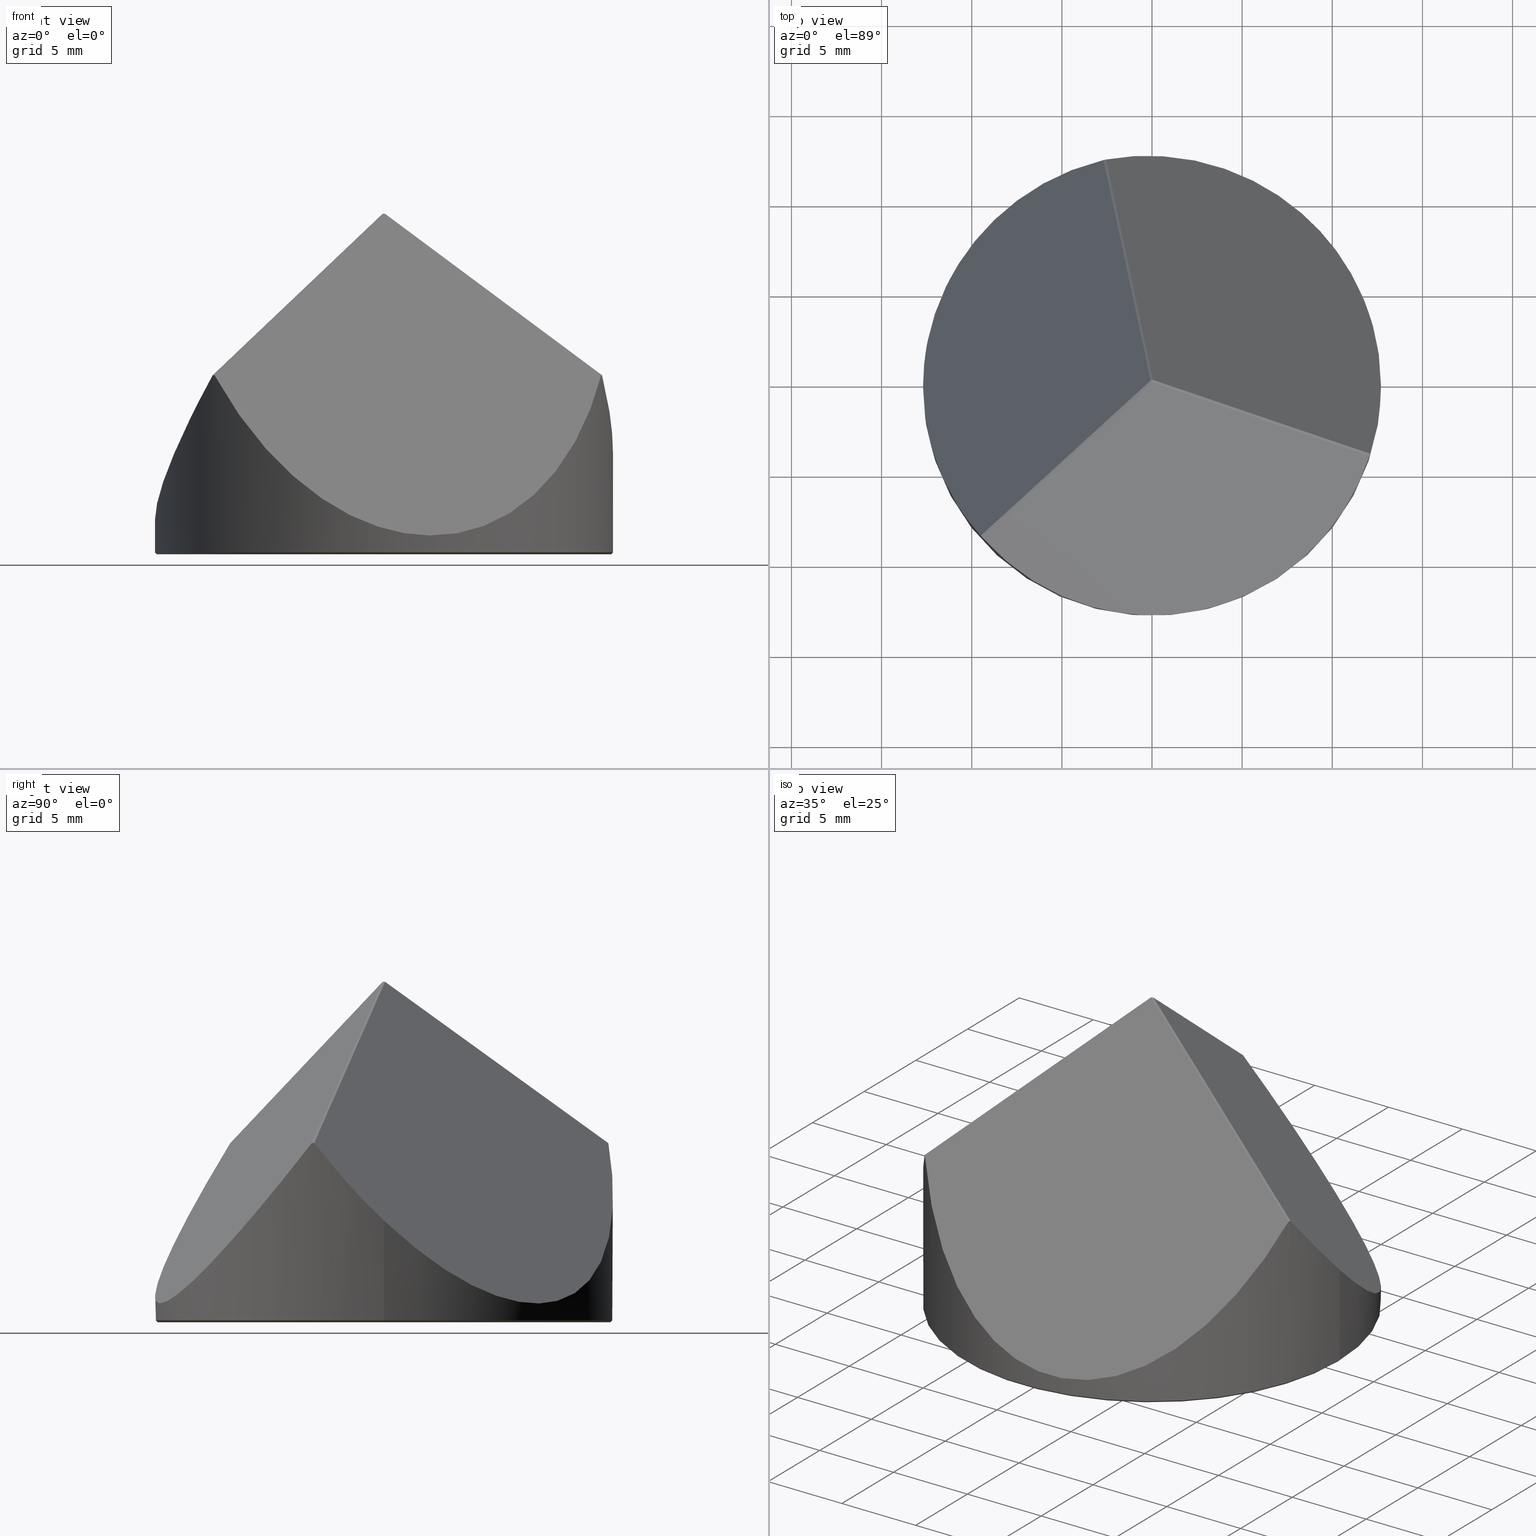
[diagram: canonical four-view strip — front | top / right | iso, engineering-drawing reading convention]
A machine part, canonical four-view strip (front | top / right | iso — engineering-drawing reading convention). The complete STEP part file that produces these views, byte-faithful:
ISO-10303-21;
HEADER;
FILE_DESCRIPTION (( 'STEP AP214' ),
    '1' );
FILE_NAME ('GP26-025-3.STEP',
    '2024-08-15T09:51:43',
    ( 'Windows User' ),
    ( 'P R C' ),
    'SwSTEP 2.0',
    'SolidWorks 2022',
    '' );
FILE_SCHEMA (( 'AUTOMOTIVE_DESIGN' ));
ENDSEC;

DATA;
#1 = VECTOR ( 'NONE', #195, 1000.000000000000114 ) ;
#2 = CYLINDRICAL_SURFACE ( 'NONE', #251, 12.69999999999999929 ) ;
#3 = EDGE_CURVE ( 'NONE', #173, #337, #166, .T. ) ;
#4 = DIRECTION ( 'NONE',  ( -0.000000000000000000, -0.000000000000000000, -1.000000000000000000 ) ) ;
#5 = CARTESIAN_POINT ( 'NONE',  ( 12.09329232385365493, -3.878437929092366510, 9.913536654948586602 ) ) ;
#6 =( BOUNDED_CURVE ( )  B_SPLINE_CURVE ( 3, ( #129, #241, #212, #153 ),
 .UNSPECIFIED., .F., .F. ) 
 B_SPLINE_CURVE_WITH_KNOTS ( ( 4, 4 ),
 ( 6.277617508481705855, 6.288753105877451510 ),
 .UNSPECIFIED. ) 
 CURVE ( )  GEOMETRIC_REPRESENTATION_ITEM ( )  RATIONAL_B_SPLINE_CURVE ( ( 1.000000000000000000, 0.9999896665659149253, 0.9999896665659149253, 1.000000000000000000 ) ) 
 REPRESENTATION_ITEM ( '' )  );
#7 = DIRECTION ( 'NONE',  ( 0.6077332452617936198, 0.5452769656516175401, 0.5773502691896256200 ) ) ;
#8 = EDGE_CURVE ( 'NONE', #65, #29, #229, .T. ) ;
#9 = CLOSED_SHELL ( 'NONE', ( #31, #141, #199, #110, #98, #159, #116, #154, #174, #18, #35, #213 ) ) ;
#10 = AXIS2_PLACEMENT_3D ( 'NONE', #234, #66, #183 ) ;
#11 = ORIENTED_EDGE ( 'NONE', *, *, #339, .F. ) ;
#12 =( NAMED_UNIT ( * ) SI_UNIT ( $, .STERADIAN. ) SOLID_ANGLE_UNIT ( ) );
#13 = AXIS2_PLACEMENT_3D ( 'NONE', #42, #277, #17 ) ;
#14 = CARTESIAN_POINT ( 'NONE',  ( 0.000000000000000000, 0.000000000000000000, 0.08000000000000020983 ) ) ;
#15 = ORIENTED_EDGE ( 'NONE', *, *, #91, .T. ) ;
#16 = UNCERTAINTY_MEASURE_WITH_UNIT (LENGTH_MEASURE( 1.000000000000000082E-05 ), #157, 'distance_accuracy_value', 'NONE');
#17 = DIRECTION ( 'NONE',  ( 1.000000000000000000, 0.000000000000000000, 0.000000000000000000 ) ) ;
#18 = ADVANCED_FACE ( 'NONE', ( #296 ), #158, .F. ) ;
#19 = CARTESIAN_POINT ( 'NONE',  ( 0.000000000000000000, 0.000000000000000000, 0.000000000000000000 ) ) ;
#20 = LINE ( 'NONE', #201, #106 ) ;
#21 = ORIENTED_EDGE ( 'NONE', *, *, #185, .T. ) ;
#22 = CARTESIAN_POINT ( 'NONE',  ( 0.000000000000000000, 0.000000000000000000, -0.02000000000000000042 ) ) ;
#23 = VERTEX_POINT ( 'NONE', #193 ) ;
#24 = EDGE_CURVE ( 'NONE', #88, #65, #191, .T. ) ;
#25 =( NAMED_UNIT ( * ) PLANE_ANGLE_UNIT ( ) SI_UNIT ( $, .RADIAN. ) );
#26 = EDGE_LOOP ( 'NONE', ( #47, #118, #155, #123 ) ) ;
#27 = PLANE ( 'NONE',  #314 ) ;
#28 = DIRECTION ( 'NONE',  ( -0.6678251671697821301, 0.7443181753085521546, 2.058629733040921112E-28 ) ) ;
#29 = VERTEX_POINT ( 'NONE', #330 ) ;
#30 = CARTESIAN_POINT ( 'NONE',  ( -2.687820388331773280, 12.41231733239478707, 9.913536654948602589 ) ) ;
#31 = ADVANCED_FACE ( 'NONE', ( #298 ), #37, .T. ) ;
#32 = CARTESIAN_POINT ( 'NONE',  ( -12.69999999999999929, 0.000000000000000000, 1.908562075568193128 ) ) ;
#33 =( BOUNDED_CURVE ( )  B_SPLINE_CURVE ( 3, ( #253, #279, #310, #79 ),
 .UNSPECIFIED., .F., .F. ) 
 B_SPLINE_CURVE_WITH_KNOTS ( ( 4, 4 ),
 ( 5.241555554680855877, 7.324815059678307705 ),
 .UNSPECIFIED. ) 
 CURVE ( )  GEOMETRIC_REPRESENTATION_ITEM ( )  RATIONAL_B_SPLINE_CURVE ( ( 1.000000000000000000, 0.6698760534178429538, 0.6698760534178429538, 1.000000000000000000 ) ) 
 REPRESENTATION_ITEM ( '' )  );
#34 = ORIENTED_EDGE ( 'NONE', *, *, #44, .T. ) ;
#35 = ADVANCED_FACE ( 'NONE', ( #163 ), #130, .T. ) ;
#36 = DIRECTION ( 'NONE',  ( -1.000000000000000000, 0.000000000000000000, 0.000000000000000000 ) ) ;
#37 = CONICAL_SURFACE ( 'NONE', #13, 12.60000000000000497, 0.7853981633974222998 ) ;
#38 = VECTOR ( 'NONE', #289, 1000.000000000000000 ) ;
#39 = SURFACE_STYLE_FILL_AREA ( #188 ) ;
#40 = EDGE_LOOP ( 'NONE', ( #15, #21 ) ) ;
#41 = EDGE_CURVE ( 'NONE', #23, #305, #276, .T. ) ;
#42 = CARTESIAN_POINT ( 'NONE',  ( 0.000000000000000000, 0.000000000000000000, -0.01999999999999918510 ) ) ;
#43 =( GEOMETRIC_REPRESENTATION_CONTEXT ( 3 ) GLOBAL_UNCERTAINTY_ASSIGNED_CONTEXT ( ( #302 ) ) GLOBAL_UNIT_ASSIGNED_CONTEXT ( ( #126, #267, #12 ) ) REPRESENTATION_CONTEXT ( 'NONE', 'WORKASPACE' ) );
#44 = EDGE_CURVE ( 'NONE', #23, #173, #20, .T. ) ;
#45 = EDGE_LOOP ( 'NONE', ( #34, #240, #11, #214 ) ) ;
#46 = SURFACE_STYLE_FILL_AREA ( #108 ) ;
#47 = ORIENTED_EDGE ( 'NONE', *, *, #185, .F. ) ;
#48 = CIRCLE ( 'NONE', #328, 12.60000000000000497 ) ;
#49 = SHAPE_DEFINITION_REPRESENTATION ( #145, #63 ) ;
#50 = CARTESIAN_POINT ( 'NONE',  ( 12.69999999999999929, 1.555301434917138433E-15, 5.611920421393865155 ) ) ;
#51 = ORIENTED_EDGE ( 'NONE', *, *, #308, .T. ) ;
#52 = DIRECTION ( 'NONE',  ( 0.000000000000000000, 0.000000000000000000, -1.000000000000000000 ) ) ;
#53 = ORIENTED_EDGE ( 'NONE', *, *, #345, .F. ) ;
#54 = DIRECTION ( 'NONE',  ( 0.1683570817218973670, -0.7989509119468803933, 0.5773502691896269523 ) ) ;
#55 = VERTEX_POINT ( 'NONE', #78 ) ;
#56 = CARTESIAN_POINT ( 'NONE',  ( -12.69999999999999929, 0.000000000000000000, 1.908562075568193128 ) ) ;
#57 = ORIENTED_EDGE ( 'NONE', *, *, #62, .T. ) ;
#58 = AXIS2_PLACEMENT_3D ( 'NONE', #95, #228, #316 ) ;
#59 = FACE_OUTER_BOUND ( 'NONE', #325, .T. ) ;
#60 = PRESENTATION_LAYER_ASSIGNMENT (  '', '', ( #259 ) ) ;
#61 = ORIENTED_EDGE ( 'NONE', *, *, #180, .F. ) ;
#62 = EDGE_CURVE ( 'NONE', #337, #55, #178, .T. ) ;
#63 = ADVANCED_BREP_SHAPE_REPRESENTATION ( 'GP26-025-3', ( #111, #271 ), #162 ) ;
#64 = PLANE ( 'NONE',  #81 ) ;
#65 = VERTEX_POINT ( 'NONE', #304 ) ;
#66 = DIRECTION ( 'NONE',  ( 0.4297322988771235530, 0.3855690400370804238, -0.8164965809277261455 ) ) ;
#67 = FILL_AREA_STYLE_COLOUR ( '', #292 ) ;
#68 = VECTOR ( 'NONE', #4, 1000.000000000000000 ) ;
#69 = CARTESIAN_POINT ( 'NONE',  ( 12.60000000000000497, 0.000000000000000000, -0.01999999999999918510 ) ) ;
#70 = DIRECTION ( 'NONE',  ( 0.1683570817218983939, -0.7989509119468809484, 0.5773502691896257311 ) ) ;
#71 =( BOUNDED_CURVE ( )  B_SPLINE_CURVE ( 3, ( #5, #87, #179, #184 ),
 .UNSPECIFIED., .F., .F. ) 
 B_SPLINE_CURVE_WITH_KNOTS ( ( 4, 4 ),
 ( 6.277617508481750264, 6.288753105877488814 ),
 .UNSPECIFIED. ) 
 CURVE ( )  GEOMETRIC_REPRESENTATION_ITEM ( )  RATIONAL_B_SPLINE_CURVE ( ( 1.000000000000000000, 0.9999896665659149253, 0.9999896665659149253, 1.000000000000000000 ) ) 
 REPRESENTATION_ITEM ( '' )  );
#72 = DIRECTION ( 'NONE',  ( -0.5487787330234595862, 0.1793745676357146046, -0.8164965809277262565 ) ) ;
#73 = PRESENTATION_STYLE_ASSIGNMENT (( #297 ) ) ;
#74 = ORIENTED_EDGE ( 'NONE', *, *, #299, .T. ) ;
#75 = UNCERTAINTY_MEASURE_WITH_UNIT (LENGTH_MEASURE( 1.000000000000000082E-05 ), #315, 'distance_accuracy_value', 'NONE');
#76 = EDGE_CURVE ( 'NONE', #309, #303, #33, .T. ) ;
#77 = CARTESIAN_POINT ( 'NONE',  ( 8.443823142774041557, -2.834351735725172183, 12.59576905379380918 ) ) ;
#78 = CARTESIAN_POINT ( 'NONE',  ( -2.549438031107219338, 12.44147763433042364, 9.913536654948595483 ) ) ;
#79 = CARTESIAN_POINT ( 'NONE',  ( 12.04935470749969184, -4.012860716852132192, 9.913536654948508442 ) ) ;
#80 = ORIENTED_EDGE ( 'NONE', *, *, #76, .T. ) ;
#81 = AXIS2_PLACEMENT_3D ( 'NONE', #263, #89, #209 ) ;
#82 = PLANE ( 'NONE',  #93 ) ;
#83 = ORIENTED_EDGE ( 'NONE', *, *, #24, .T. ) ;
#84 = SURFACE_STYLE_USAGE ( .BOTH. , #220 ) ;
#85 = PRODUCT_DEFINITION_CONTEXT ( 'detailed design', #237, 'design' ) ;
#86 = EDGE_CURVE ( 'NONE', #367, #55, #286, .T. ) ;
#87 = CARTESIAN_POINT ( 'NONE',  ( 12.07889600837074973, -3.923326839190758086, 9.913351060699756800 ) ) ;
#88 = VERTEX_POINT ( 'NONE', #332 ) ;
#89 = DIRECTION ( 'NONE',  ( 0.1190464341463360609, -0.5649436076728148182, -0.8164965809277261455 ) ) ;
#90 = CARTESIAN_POINT ( 'NONE',  ( -11.58490006638009717, -6.078626560760164388, 6.078314110506783940 ) ) ;
#91 = EDGE_CURVE ( 'NONE', #88, #340, #334, .T. ) ;
#92 = ORIENTED_EDGE ( 'NONE', *, *, #44, .F. ) ;
#93 = AXIS2_PLACEMENT_3D ( 'NONE', #198, #52, #115 ) ;
#94 = FACE_OUTER_BOUND ( 'NONE', #261, .T. ) ;
#95 = CARTESIAN_POINT ( 'NONE',  ( 0.000000000000000000, 0.000000000000000000, -0.01999999999999918510 ) ) ;
#96 =( NAMED_UNIT ( * ) SI_UNIT ( $, .STERADIAN. ) SOLID_ANGLE_UNIT ( ) );
#97 = EDGE_LOOP ( 'NONE', ( #150, #181, #233, #175 ) ) ;
#98 = ADVANCED_FACE ( 'NONE', ( #227 ), #27, .T. ) ;
#99 = CARTESIAN_POINT ( 'NONE',  ( 0.06077332452617569686, 0.05452769656516440883, 18.86478606723122553 ) ) ;
#100 = EDGE_LOOP ( 'NONE', ( #359, #205, #80 ) ) ;
#101 = CARTESIAN_POINT ( 'NONE',  ( -9.405471935521878990, -8.533879403302485400, 9.913536654948641669 ) ) ;
#102 = ORIENTED_EDGE ( 'NONE', *, *, #86, .F. ) ;
#103 = CARTESIAN_POINT ( 'NONE',  ( 12.09329232385365493, -3.878437929092366510, 9.913536654948586602 ) ) ;
#104 = ORIENTED_EDGE ( 'NONE', *, *, #243, .F. ) ;
#105 = ORIENTED_EDGE ( 'NONE', *, *, #180, .T. ) ;
#106 = VECTOR ( 'NONE', #28, 1000.000000000000000 ) ;
#107 = CARTESIAN_POINT ( 'NONE',  ( 1.844899997686883841, -8.755108609197396419, 6.326752040356407036 ) ) ;
#108 = FILL_AREA_STYLE ('',( #341 ) ) ;
#109 = ORIENTED_EDGE ( 'NONE', *, *, #256, .T. ) ;
#110 = ADVANCED_FACE ( 'NONE', ( #365 ), #197, .T. ) ;
#111 = MANIFOLD_SOLID_BREP ( '����2', #9 ) ;
#112 = DIRECTION ( 'NONE',  ( 0.000000000000000000, 0.000000000000000000, -1.000000000000000000 ) ) ;
#113 = FACE_OUTER_BOUND ( 'NONE', #216, .T. ) ;
#114 = ORIENTED_EDGE ( 'NONE', *, *, #76, .F. ) ;
#115 = DIRECTION ( 'NONE',  ( -1.000000000000000000, 0.000000000000000000, -0.000000000000000000 ) ) ;
#116 = ADVANCED_FACE ( 'NONE', ( #357 ), #82, .T. ) ;
#117 = DIRECTION ( 'NONE',  ( -0.000000000000000000, -0.000000000000000000, -1.000000000000000000 ) ) ;
#118 = ORIENTED_EDGE ( 'NONE', *, *, #294, .T. ) ;
#119 = AXIS2_PLACEMENT_3D ( 'NONE', #127, #269, #131 ) ;
#120 = CARTESIAN_POINT ( 'NONE',  ( 0.000000000000000000, 0.000000000000000000, -0.02000000000000000042 ) ) ;
#121 = CARTESIAN_POINT ( 'NONE',  ( 0.000000000000000000, 0.000000000000000000, 10.00000000000000000 ) ) ;
#122 = CARTESIAN_POINT ( 'NONE',  ( -12.60000000000000497, 1.543054966925665667E-15, -0.01999999999999918510 ) ) ;
#123 = ORIENTED_EDGE ( 'NONE', *, *, #24, .F. ) ;
#124 = CARTESIAN_POINT ( 'NONE',  ( -0.07760903269836504081, 0.02536739462952854532, 18.86478606723122908 ) ) ;
#125 = DIRECTION ( 'NONE',  ( -1.000000000000000000, 0.000000000000000000, 0.000000000000000000 ) ) ;
#126 =( LENGTH_UNIT ( ) NAMED_UNIT ( * ) SI_UNIT ( .MILLI., .METRE. ) );
#127 = CARTESIAN_POINT ( 'NONE',  ( 0.000000000000000000, 0.000000000000000000, 0.08000000000000020983 ) ) ;
#128 = DIRECTION ( 'NONE',  ( -0.9785110319005667634, -0.2061944724013905217, 2.454577877075724147E-14 ) ) ;
#129 = CARTESIAN_POINT ( 'NONE',  ( -9.405471935521878990, -8.533879403302485400, 9.913536654948641669 ) ) ;
#130 = PLANE ( 'NONE',  #264 ) ;
#131 = DIRECTION ( 'NONE',  ( -1.000000000000000000, 0.000000000000000000, 0.000000000000000000 ) ) ;
#132 = VECTOR ( 'NONE', #128, 1000.000000000000114 ) ;
#133 = DIRECTION ( 'NONE',  ( 0.000000000000000000, 0.000000000000000000, 1.000000000000000000 ) ) ;
#134 = EDGE_LOOP ( 'NONE', ( #313, #109, #311, #324 ) ) ;
#135 = EDGE_CURVE ( 'NONE', #23, #309, #362, .T. ) ;
#136 = ORIENTED_EDGE ( 'NONE', *, *, #299, .F. ) ;
#137 = DIRECTION ( 'NONE',  ( -0.6077332452617936198, -0.5452769656516175401, -0.5773502691896255090 ) ) ;
#138 = ORIENTED_EDGE ( 'NONE', *, *, #243, .T. ) ;
#139 = VECTOR ( 'NONE', #137, 1000.000000000000114 ) ;
#140 = PRODUCT_DEFINITION_FORMATION_WITH_SPECIFIED_SOURCE ( '�κ�', '', #167, .NOT_KNOWN. ) ;
#141 = ADVANCED_FACE ( 'NONE', ( #113 ), #258, .T. ) ;
#142 = DIRECTION ( 'NONE',  ( 0.000000000000000000, -0.5857106597838074302, -0.8105202175242867124 ) ) ;
#143 = CARTESIAN_POINT ( 'NONE',  ( -12.69999999999999929, 0.000000000000000000, 1.908562075568193128 ) ) ;
#144 = EDGE_LOOP ( 'NONE', ( #236, #170, #83, #273 ) ) ;
#145 = PRODUCT_DEFINITION_SHAPE ( 'NONE', 'NONE',  #274 ) ;
#146 = LINE ( 'NONE', #177, #68 ) ;
#147 = LINE ( 'NONE', #346, #231 ) ;
#148 =( BOUNDED_CURVE ( )  B_SPLINE_CURVE ( 3, ( #30, #287, #342, #32 ),
 .UNSPECIFIED., .F., .F. ) 
 B_SPLINE_CURVE_WITH_KNOTS ( ( 4, 4 ),
 ( 5.241555554680859430, 6.599099828102190202 ),
 .UNSPECIFIED. ) 
 CURVE ( )  GEOMETRIC_REPRESENTATION_ITEM ( )  RATIONAL_B_SPLINE_CURVE ( ( 1.000000000000000000, 0.8522294695164696066, 0.8522294695164696066, 1.000000000000000000 ) ) 
 REPRESENTATION_ITEM ( '' )  );
#149 = CARTESIAN_POINT ( 'NONE',  ( -12.69999999999999751, -3.141593610445596152, 3.288903423527215431 ) ) ;
#150 = ORIENTED_EDGE ( 'NONE', *, *, #349, .T. ) ;
#151 = PLANE ( 'NONE',  #10 ) ;
#152 = COLOUR_RGB ( '',1.000000000000000000, 1.000000000000000000, 1.000000000000000000 ) ;
#153 = CARTESIAN_POINT ( 'NONE',  ( -9.499916676392437864, -8.428616917478272796, 9.913536654948565285 ) ) ;
#154 = ADVANCED_FACE ( 'NONE', ( #344 ), #182, .T. ) ;
#155 = ORIENTED_EDGE ( 'NONE', *, *, #8, .F. ) ;
#156 = SURFACE_SIDE_STYLE ('',( #39 ) ) ;
#157 =( LENGTH_UNIT ( ) NAMED_UNIT ( * ) SI_UNIT ( .MILLI., .METRE. ) );
#158 = PLANE ( 'NONE',  #169 ) ;
#159 = ADVANCED_FACE ( 'NONE', ( #235 ), #285, .T. ) ;
#160 = CARTESIAN_POINT ( 'NONE',  ( -0.07760903269836504081, 0.02536739462952854532, 18.86478606723122908 ) ) ;
#161 = VECTOR ( 'NONE', #356, 1000.000000000000000 ) ;
#162 =( GEOMETRIC_REPRESENTATION_CONTEXT ( 3 ) GLOBAL_UNCERTAINTY_ASSIGNED_CONTEXT ( ( #16 ) ) GLOBAL_UNIT_ASSIGNED_CONTEXT ( ( #157, #350, #96 ) ) REPRESENTATION_CONTEXT ( 'NONE', 'WORKASPACE' ) );
#163 = FACE_OUTER_BOUND ( 'NONE', #257, .T. ) ;
#164 = LINE ( 'NONE', #77, #278 ) ;
#165 = DIRECTION ( 'NONE',  ( 1.000000000000000000, 0.000000000000000000, -2.108498255374521895E-14 ) ) ;
#166 = LINE ( 'NONE', #327, #319 ) ;
#167 = PRODUCT ( 'GP26-025-3', 'GP26-025-3', '', ( #355 ) ) ;
#168 = CARTESIAN_POINT ( 'NONE',  ( 12.70000000000000107, 8.691711861742190237, -2.596944323644162278 ) ) ;
#169 = AXIS2_PLACEMENT_3D ( 'NONE', #242, #72, #247 ) ;
#170 = ORIENTED_EDGE ( 'NONE', *, *, #91, .F. ) ;
#171 = CARTESIAN_POINT ( 'NONE',  ( 5.965344546208515730, 14.18627927021635138, -0.6972085321788039636 ) ) ;
#172 = CARTESIAN_POINT ( 'NONE',  ( -6.582087436914971335, -6.000651964666918303, 12.59576905379380918 ) ) ;
#173 = VERTEX_POINT ( 'NONE', #124 ) ;
#174 = ADVANCED_FACE ( 'NONE', ( #94 ), #64, .F. ) ;
#175 = ORIENTED_EDGE ( 'NONE', *, *, #86, .T. ) ;
#176 = VECTOR ( 'NONE', #290, 1000.000000000000114 ) ;
#177 = CARTESIAN_POINT ( 'NONE',  ( -12.69999999999999929, 0.000000000000000000, 10.00000000000000000 ) ) ;
#178 =( BOUNDED_CURVE ( )  B_SPLINE_CURVE ( 3, ( #202, #331, #307, #336 ),
 .UNSPECIFIED., .F., .F. ) 
 B_SPLINE_CURVE_WITH_KNOTS ( ( 4, 4 ),
 ( 6.277617508481720066, 6.288753105877466609 ),
 .UNSPECIFIED. ) 
 CURVE ( )  GEOMETRIC_REPRESENTATION_ITEM ( )  RATIONAL_B_SPLINE_CURVE ( ( 1.000000000000000000, 0.9999896665659149253, 0.9999896665659149253, 1.000000000000000000 ) ) 
 REPRESENTATION_ITEM ( '' )  );
#179 = CARTESIAN_POINT ( 'NONE',  ( 12.06424998490903988, -3.968134898131804977, 9.913351060699758577 ) ) ;
#180 = EDGE_CURVE ( 'NONE', #333, #303, #71, .T. ) ;
#181 = ORIENTED_EDGE ( 'NONE', *, *, #248, .T. ) ;
#182 = CONICAL_SURFACE ( 'NONE', #58, 12.60000000000000497, 0.7853981633974222998 ) ;
#183 = DIRECTION ( 'NONE',  ( -0.6077332452617936198, -0.5452769656516175401, -0.5773502691896255090 ) ) ;
#184 = CARTESIAN_POINT ( 'NONE',  ( 12.04935470749969184, -4.012860716852132192, 9.913536654948508442 ) ) ;
#185 = EDGE_CURVE ( 'NONE', #340, #88, #48, .T. ) ;
#186 = CARTESIAN_POINT ( 'NONE',  ( 0.000000000000000000, 0.000000000000000000, 10.00000000000000000 ) ) ;
#187 = ORIENTED_EDGE ( 'NONE', *, *, #223, .F. ) ;
#188 = FILL_AREA_STYLE ('',( #67 ) ) ;
#189 =( BOUNDED_CURVE ( )  B_SPLINE_CURVE ( 3, ( #56, #149, #90, #206 ),
 .UNSPECIFIED., .F., .F. ) 
 B_SPLINE_CURVE_WITH_KNOTS ( ( 4, 4 ),
 ( 0.3159145209226036921, 1.041629752498725026 ),
 .UNSPECIFIED. ) 
 CURVE ( )  GEOMETRIC_REPRESENTATION_ITEM ( )  RATIONAL_B_SPLINE_CURVE ( ( 1.000000000000000000, 0.9565908929254083315, 0.9565908929254083315, 1.000000000000000000 ) ) 
 REPRESENTATION_ITEM ( '' )  );
#190 = CARTESIAN_POINT ( 'NONE',  ( -2.687820388331773280, 12.41231733239478707, 9.913536654948602589 ) ) ;
#191 = LINE ( 'NONE', #69, #1 ) ;
#192 = AXIS2_PLACEMENT_3D ( 'NONE', #186, #117, #36 ) ;
#193 = CARTESIAN_POINT ( 'NONE',  ( 0.01683570817218583981, -0.07989509119468252152, 18.86478606723122908 ) ) ;
#194 = CARTESIAN_POINT ( 'NONE',  ( 12.69999999999999929, 1.555301434917138433E-15, 5.611920421393865155 ) ) ;
#195 = DIRECTION ( 'NONE',  ( 0.7071067811865291430, 0.000000000000000000, 0.7071067811865658914 ) ) ;
#196 = CARTESIAN_POINT ( 'NONE',  ( -8.504596467300229889, 2.779824039159992211, 6.326752040356383056 ) ) ;
#197 = PLANE ( 'NONE',  #306 ) ;
#198 = CARTESIAN_POINT ( 'NONE',  ( 0.000000000000000000, 0.000000000000000000, -0.02000000000000000042 ) ) ;
#199 = ADVANCED_FACE ( 'NONE', ( #59 ), #2, .T. ) ;
#200 = ORIENTED_EDGE ( 'NONE', *, *, #282, .T. ) ;
#201 = CARTESIAN_POINT ( 'NONE',  ( -0.07760903269836504081, 0.02536739462952854532, 18.86478606723122908 ) ) ;
#202 = CARTESIAN_POINT ( 'NONE',  ( -2.687820388331773280, 12.41231733239478707, 9.913536654948602589 ) ) ;
#203 = CARTESIAN_POINT ( 'NONE',  ( -9.499916676392437864, -8.428616917478272796, 9.913536654948565285 ) ) ;
#204 = DIRECTION ( 'NONE',  ( -1.000000000000000000, 0.000000000000000000, 0.000000000000000000 ) ) ;
#205 = ORIENTED_EDGE ( 'NONE', *, *, #135, .T. ) ;
#206 = CARTESIAN_POINT ( 'NONE',  ( -9.499916676392437864, -8.428616917478272796, 9.913536654948565285 ) ) ;
#207 = MECHANICAL_DESIGN_GEOMETRIC_PRESENTATION_REPRESENTATION (  '', ( #259 ), #43 ) ;
#208 = DIRECTION ( 'NONE',  ( -1.000000000000000000, 0.000000000000000000, 0.000000000000000000 ) ) ;
#209 = DIRECTION ( 'NONE',  ( -0.1683570817218983384, 0.7989509119468809484, -0.5773502691896255090 ) ) ;
#210 = CARTESIAN_POINT ( 'NONE',  ( 12.04935470749969184, -4.012860716852132192, 9.913536654948508442 ) ) ;
#211 = PRESENTATION_LAYER_ASSIGNMENT (  '', '', ( #360 ) ) ;
#212 = CARTESIAN_POINT ( 'NONE',  ( -9.468630619880229915, -8.463879515471369075, 9.913351060699751471 ) ) ;
#213 = ADVANCED_FACE ( 'NONE', ( #317 ), #151, .F. ) ;
#214 = ORIENTED_EDGE ( 'NONE', *, *, #135, .F. ) ;
#215 = CARTESIAN_POINT ( 'NONE',  ( -1.767290964988526891, 8.729741214567862784, 12.59576905379380918 ) ) ;
#216 = EDGE_LOOP ( 'NONE', ( #102, #138, #343, #363, #187, #57 ) ) ;
#217 = APPLICATION_PROTOCOL_DEFINITION ( 'draft international standard', 'automotive_design', 1998, #268 ) ;
#218 = VECTOR ( 'NONE', #7, 1000.000000000000114 ) ;
#219 = EDGE_CURVE ( 'NONE', #254, #173, #232, .T. ) ;
#220 = SURFACE_SIDE_STYLE ('',( #46 ) ) ;
#221 = DIRECTION ( 'NONE',  ( 0.5968741507396998491, 0.000000000000000000, 0.8023348728422328158 ) ) ;
#222 = ORIENTED_EDGE ( 'NONE', *, *, #62, .F. ) ;
#223 = EDGE_CURVE ( 'NONE', #337, #226, #148, .T. ) ;
#224 = MECHANICAL_DESIGN_GEOMETRIC_PRESENTATION_REPRESENTATION (  '', ( #360 ), #354 ) ;
#225 = EDGE_LOOP ( 'NONE', ( #61, #262, #284, #53 ) ) ;
#226 = VERTEX_POINT ( 'NONE', #143 ) ;
#227 = FACE_OUTER_BOUND ( 'NONE', #100, .T. ) ;
#228 = DIRECTION ( 'NONE',  ( 0.000000000000000000, 0.000000000000000000, 1.000000000000000000 ) ) ;
#229 = CIRCLE ( 'NONE', #119, 12.69999999999999929 ) ;
#230 = ORIENTED_EDGE ( 'NONE', *, *, #349, .F. ) ;
#231 = VECTOR ( 'NONE', #260, 1000.000000000000000 ) ;
#232 = LINE ( 'NONE', #320, #218 ) ;
#233 = ORIENTED_EDGE ( 'NONE', *, *, #322, .T. ) ;
#234 = CARTESIAN_POINT ( 'NONE',  ( -6.582087436914969558, -6.000651964666919191, 12.59576905379380918 ) ) ;
#235 = FACE_OUTER_BOUND ( 'NONE', #97, .T. ) ;
#236 = ORIENTED_EDGE ( 'NONE', *, *, #294, .F. ) ;
#237 = APPLICATION_CONTEXT ( 'automotive_design' ) ;
#238 = DIRECTION ( 'NONE',  ( 0.6887517733186865332, 0.000000000000000000, -0.7249972377536101353 ) ) ;
#239 = CARTESIAN_POINT ( 'NONE',  ( 12.69999999999999929, 1.555301434917138433E-15, 5.611920421393865155 ) ) ;
#240 = ORIENTED_EDGE ( 'NONE', *, *, #219, .F. ) ;
#241 = CARTESIAN_POINT ( 'NONE',  ( -9.437148714273845940, -8.498967373324177288, 9.913351060699753248 ) ) ;
#242 = CARTESIAN_POINT ( 'NONE',  ( 8.487760759128029520, -2.699928947965325232, 12.59576905379380740 ) ) ;
#243 = EDGE_CURVE ( 'NONE', #367, #65, #255, .T. ) ;
#244 = CARTESIAN_POINT ( 'NONE',  ( 12.49613108428735231, -2.622353139708192948, 8.303192537404235907 ) ) ;
#245 = ORIENTED_EDGE ( 'NONE', *, *, #3, .F. ) ;
#246 = CARTESIAN_POINT ( 'NONE',  ( -0.07760903269836504081, 0.02536739462952854532, 18.86478606723122908 ) ) ;
#247 = DIRECTION ( 'NONE',  ( 0.7760903269836917362, -0.2536739462952657398, -0.5773502691896255090 ) ) ;
#248 = EDGE_CURVE ( 'NONE', #305, #333, #147, .T. ) ;
#249 =( NAMED_UNIT ( * ) SI_UNIT ( $, .STERADIAN. ) SOLID_ANGLE_UNIT ( ) );
#250 = PRESENTATION_STYLE_ASSIGNMENT (( #84 ) ) ;
#251 = AXIS2_PLACEMENT_3D ( 'NONE', #121, #321, #208 ) ;
#252 = APPLICATION_PROTOCOL_DEFINITION ( 'draft international standard', 'automotive_design', 1998, #237 ) ;
#253 = CARTESIAN_POINT ( 'NONE',  ( -9.405471935521878990, -8.533879403302485400, 9.913536654948641669 ) ) ;
#254 = VERTEX_POINT ( 'NONE', #203 ) ;
#255 = LINE ( 'NONE', #366, #38 ) ;
#256 = EDGE_CURVE ( 'NONE', #226, #254, #189, .T. ) ;
#257 = EDGE_LOOP ( 'NONE', ( #266, #74, #92 ) ) ;
#258 = CYLINDRICAL_SURFACE ( 'NONE', #192, 12.69999999999999929 ) ;
#259 = STYLED_ITEM ( 'NONE', ( #73 ), #63 ) ;
#260 = DIRECTION ( 'NONE',  ( 0.7760903269836918472, -0.2536739462952657953, -0.5773502691896255090 ) ) ;
#261 = EDGE_LOOP ( 'NONE', ( #222, #245, #136, #230 ) ) ;
#262 = ORIENTED_EDGE ( 'NONE', *, *, #248, .F. ) ;
#263 = CARTESIAN_POINT ( 'NONE',  ( -1.905673322213067955, 8.700580912632227992, 12.59576905379380918 ) ) ;
#264 = AXIS2_PLACEMENT_3D ( 'NONE', #246, #301, #165 ) ;
#265 = VECTOR ( 'NONE', #70, 1000.000000000000000 ) ;
#266 = ORIENTED_EDGE ( 'NONE', *, *, #41, .T. ) ;
#267 =( NAMED_UNIT ( * ) PLANE_ANGLE_UNIT ( ) SI_UNIT ( $, .RADIAN. ) );
#268 = APPLICATION_CONTEXT ( 'automotive_design' ) ;
#269 = DIRECTION ( 'NONE',  ( 0.000000000000000000, 0.000000000000000000, 1.000000000000000000 ) ) ;
#270 = AXIS2_PLACEMENT_3D ( 'NONE', #347, #291, #238 ) ;
#271 = AXIS2_PLACEMENT_3D ( 'NONE', #19, #133, #364 ) ;
#272 = LINE ( 'NONE', #215, #265 ) ;
#273 = ORIENTED_EDGE ( 'NONE', *, *, #308, .F. ) ;
#274 = PRODUCT_DEFINITION ( 'δ֪', '', #140, #85 ) ;
#275 = DIRECTION ( 'NONE',  ( 0.000000000000000000, 0.000000000000000000, 1.000000000000000000 ) ) ;
#276 = LINE ( 'NONE', #353, #161 ) ;
#277 = DIRECTION ( 'NONE',  ( 0.000000000000000000, 0.000000000000000000, 1.000000000000000000 ) ) ;
#278 = VECTOR ( 'NONE', #323, 1000.000000000000114 ) ;
#279 = CARTESIAN_POINT ( 'NONE',  ( -2.074081374338276884, -16.61404844633792521, -3.405847358253904389 ) ) ;
#280 = ORIENTED_EDGE ( 'NONE', *, *, #256, .F. ) ;
#281 = DIRECTION ( 'NONE',  ( -1.000000000000000000, 0.000000000000000000, 0.000000000000000000 ) ) ;
#282 = EDGE_CURVE ( 'NONE', #226, #29, #146, .T. ) ;
#283 = DIRECTION ( 'NONE',  ( -0.7760903269836922913, 0.2536739462952635749, 0.5773502691896257311 ) ) ;
#284 = ORIENTED_EDGE ( 'NONE', *, *, #41, .F. ) ;
#285 = PLANE ( 'NONE',  #270 ) ;
#286 =( BOUNDED_CURVE ( )  B_SPLINE_CURVE ( 3, ( #50, #168, #171, #312 ),
 .UNSPECIFIED., .F., .F. ) 
 B_SPLINE_CURVE_WITH_KNOTS ( ( 4, 4 ),
 ( 5.551902276905597233, 7.324815059678313034 ),
 .UNSPECIFIED. ) 
 CURVE ( )  GEOMETRIC_REPRESENTATION_ITEM ( )  RATIONAL_B_SPLINE_CURVE ( ( 1.000000000000000000, 0.7547744714256109377, 0.7547744714256109377, 1.000000000000000000 ) ) 
 REPRESENTATION_ITEM ( '' )  );
#287 = CARTESIAN_POINT ( 'NONE',  ( -8.783926544123202618, 11.09223841592949711, 2.298992025420364183 ) ) ;
#288 = AXIS2_PLACEMENT_3D ( 'NONE', #22, #112, #281 ) ;
#289 = DIRECTION ( 'NONE',  ( -0.000000000000000000, -0.000000000000000000, -1.000000000000000000 ) ) ;
#290 = DIRECTION ( 'NONE',  ( -0.7071067811865291430, 8.659560562354708526E-17, 0.7071067811865658914 ) ) ;
#291 = DIRECTION ( 'NONE',  ( 0.6077332452617948411, 0.5452769656516168739, 0.5773502691896251759 ) ) ;
#292 = COLOUR_RGB ( '',1.000000000000000000, 1.000000000000000000, 1.000000000000000000 ) ;
#293 = LINE ( 'NONE', #160, #132 ) ;
#294 = EDGE_CURVE ( 'NONE', #340, #29, #318, .T. ) ;
#295 = DIRECTION ( 'NONE',  ( -0.1683570817218983662, 0.7989509119468810594, -0.5773502691896255090 ) ) ;
#296 = FACE_OUTER_BOUND ( 'NONE', #225, .T. ) ;
#297 = SURFACE_STYLE_USAGE ( .BOTH. , #156 ) ;
#298 = FACE_OUTER_BOUND ( 'NONE', #26, .T. ) ;
#299 = EDGE_CURVE ( 'NONE', #305, #173, #293, .T. ) ;
#300 = CARTESIAN_POINT ( 'NONE',  ( 12.09329232385365493, -3.878437929092366510, 9.913536654948586602 ) ) ;
#301 = DIRECTION ( 'NONE',  ( 2.108498255374521895E-14, 1.891809506450517713E-14, 1.000000000000000000 ) ) ;
#302 = UNCERTAINTY_MEASURE_WITH_UNIT (LENGTH_MEASURE( 1.000000000000000082E-05 ), #126, 'distance_accuracy_value', 'NONE');
#303 = VERTEX_POINT ( 'NONE', #210 ) ;
#304 = CARTESIAN_POINT ( 'NONE',  ( 12.69999999999999929, 1.555301434917138433E-15, 0.08000000000000020983 ) ) ;
#305 = VERTEX_POINT ( 'NONE', #99 ) ;
#306 = AXIS2_PLACEMENT_3D ( 'NONE', #196, #283, #221 ) ;
#307 = CARTESIAN_POINT ( 'NONE',  ( -2.595619365028784653, 12.43201441360316650, 9.913351060699755024 ) ) ;
#308 = EDGE_CURVE ( 'NONE', #29, #65, #329, .T. ) ;
#309 = VERTEX_POINT ( 'NONE', #101 ) ;
#310 = CARTESIAN_POINT ( 'NONE',  ( 8.601936740532737602, -14.36436923907602292, -3.405847358253973223 ) ) ;
#311 = ORIENTED_EDGE ( 'NONE', *, *, #219, .T. ) ;
#312 = CARTESIAN_POINT ( 'NONE',  ( -2.549438031107219338, 12.44147763433042364, 9.913536654948595483 ) ) ;
#313 = ORIENTED_EDGE ( 'NONE', *, *, #223, .T. ) ;
#314 = AXIS2_PLACEMENT_3D ( 'NONE', #107, #54, #142 ) ;
#315 =( LENGTH_UNIT ( ) NAMED_UNIT ( * ) SI_UNIT ( .MILLI., .METRE. ) );
#316 = DIRECTION ( 'NONE',  ( 1.000000000000000000, 0.000000000000000000, 0.000000000000000000 ) ) ;
#317 = FACE_OUTER_BOUND ( 'NONE', #45, .T. ) ;
#318 = LINE ( 'NONE', #122, #176 ) ;
#319 = VECTOR ( 'NONE', #295, 1000.000000000000227 ) ;
#320 = CARTESIAN_POINT ( 'NONE',  ( -6.676532177785523992, -5.895389478842710140, 12.59576905379380918 ) ) ;
#321 = DIRECTION ( 'NONE',  ( -0.000000000000000000, -0.000000000000000000, -1.000000000000000000 ) ) ;
#322 = EDGE_CURVE ( 'NONE', #333, #367, #338, .T. ) ;
#323 = DIRECTION ( 'NONE',  ( -0.7760903269836917362, 0.2536739462952657398, 0.5773502691896255090 ) ) ;
#324 = ORIENTED_EDGE ( 'NONE', *, *, #3, .T. ) ;
#325 = EDGE_LOOP ( 'NONE', ( #104, #352, #105, #114, #358, #280, #200, #51 ) ) ;
#326 = CARTESIAN_POINT ( 'NONE',  ( -12.60000000000000497, 1.549178200921402149E-15, -0.02000000000000000042 ) ) ;
#327 = CARTESIAN_POINT ( 'NONE',  ( -1.905673322213067067, 8.700580912632229769, 12.59576905379381095 ) ) ;
#328 = AXIS2_PLACEMENT_3D ( 'NONE', #120, #348, #204 ) ;
#329 = CIRCLE ( 'NONE', #335, 12.69999999999999929 ) ;
#330 = CARTESIAN_POINT ( 'NONE',  ( -12.69999999999999929, 0.000000000000000000, 0.08000000000000020983 ) ) ;
#331 = CARTESIAN_POINT ( 'NONE',  ( -2.641747294096887355, 12.42229421251489896, 9.913351060699753248 ) ) ;
#332 = CARTESIAN_POINT ( 'NONE',  ( 12.60000000000000497, 0.000000000000000000, -0.02000000000000000042 ) ) ;
#333 = VERTEX_POINT ( 'NONE', #300 ) ;
#334 = CIRCLE ( 'NONE', #288, 12.60000000000000497 ) ;
#335 = AXIS2_PLACEMENT_3D ( 'NONE', #14, #275, #125 ) ;
#336 = CARTESIAN_POINT ( 'NONE',  ( -2.549438031107219338, 12.44147763433042364, 9.913536654948595483 ) ) ;
#337 = VERTEX_POINT ( 'NONE', #190 ) ;
#338 =( BOUNDED_CURVE ( )  B_SPLINE_CURVE ( 3, ( #103, #244, #351, #194 ),
 .UNSPECIFIED., .F., .T. ) 
 B_SPLINE_CURVE_WITH_KNOTS ( ( 4, 4 ),
 ( 5.241555554680860318, 5.551902276905597233 ),
 .UNSPECIFIED. ) 
 CURVE ( )  GEOMETRIC_REPRESENTATION_ITEM ( )  RATIONAL_B_SPLINE_CURVE ( ( 1.000000000000000000, 0.9919898349478311061, 0.9919898349478311061, 1.000000000000000000 ) ) 
 REPRESENTATION_ITEM ( '' )  );
#339 = EDGE_CURVE ( 'NONE', #309, #254, #6, .T. ) ;
#340 = VERTEX_POINT ( 'NONE', #326 ) ;
#341 = FILL_AREA_STYLE_COLOUR ( '', #152 ) ;
#342 = CARTESIAN_POINT ( 'NONE',  ( -12.69999999999999929, 6.237396781380374122, -0.8320013927107907659 ) ) ;
#343 = ORIENTED_EDGE ( 'NONE', *, *, #8, .T. ) ;
#344 = FACE_OUTER_BOUND ( 'NONE', #144, .T. ) ;
#345 = EDGE_CURVE ( 'NONE', #303, #23, #164, .T. ) ;
#346 = CARTESIAN_POINT ( 'NONE',  ( 8.487760759128029520, -2.699928947965325232, 12.59576905379380740 ) ) ;
#347 = CARTESIAN_POINT ( 'NONE',  ( 6.659696469613340497, 5.975284570037382892, 6.326752040356367957 ) ) ;
#348 = DIRECTION ( 'NONE',  ( 0.000000000000000000, 0.000000000000000000, -1.000000000000000000 ) ) ;
#349 = EDGE_CURVE ( 'NONE', #55, #305, #272, .T. ) ;
#350 =( NAMED_UNIT ( * ) PLANE_ANGLE_UNIT ( ) SI_UNIT ( $, .RADIAN. ) );
#351 = CARTESIAN_POINT ( 'NONE',  ( 12.70000000000000107, -1.319101233806576623, 6.857742163482829056 ) ) ;
#352 = ORIENTED_EDGE ( 'NONE', *, *, #322, .F. ) ;
#353 = CARTESIAN_POINT ( 'NONE',  ( 0.03880451634917987669, -0.01268369731475826011, 18.86478606723122908 ) ) ;
#354 =( GEOMETRIC_REPRESENTATION_CONTEXT ( 3 ) GLOBAL_UNCERTAINTY_ASSIGNED_CONTEXT ( ( #75 ) ) GLOBAL_UNIT_ASSIGNED_CONTEXT ( ( #315, #25, #249 ) ) REPRESENTATION_CONTEXT ( 'NONE', 'WORKASPACE' ) );
#355 = PRODUCT_CONTEXT ( 'NONE', #268, 'mechanical' ) ;
#356 = DIRECTION ( 'NONE',  ( 0.3106858647307908505, 0.9505126477098980731, -2.454577877075680286E-14 ) ) ;
#357 = FACE_OUTER_BOUND ( 'NONE', #40, .T. ) ;
#358 = ORIENTED_EDGE ( 'NONE', *, *, #339, .T. ) ;
#359 = ORIENTED_EDGE ( 'NONE', *, *, #345, .T. ) ;
#360 = STYLED_ITEM ( 'NONE', ( #250 ), #111 ) ;
#361 = PRODUCT_RELATED_PRODUCT_CATEGORY ( 'part', '', ( #167 ) ) ;
#362 = LINE ( 'NONE', #172, #139 ) ;
#363 = ORIENTED_EDGE ( 'NONE', *, *, #282, .F. ) ;
#364 = DIRECTION ( 'NONE',  ( 1.000000000000000000, 0.000000000000000000, 0.000000000000000000 ) ) ;
#365 = FACE_OUTER_BOUND ( 'NONE', #134, .T. ) ;
#366 = CARTESIAN_POINT ( 'NONE',  ( 12.69999999999999929, 1.555301434917138433E-15, 10.00000000000000000 ) ) ;
#367 = VERTEX_POINT ( 'NONE', #239 ) ;
ENDSEC;
END-ISO-10303-21;
